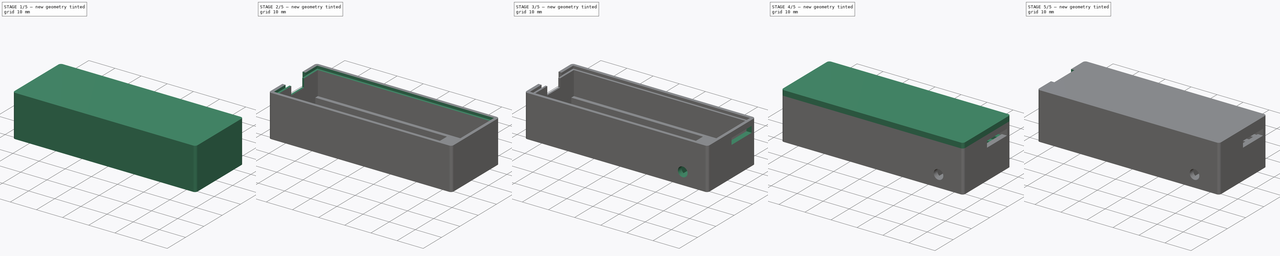
[diagram: build sequence overview — one tinted view per stage of 5, left to right]
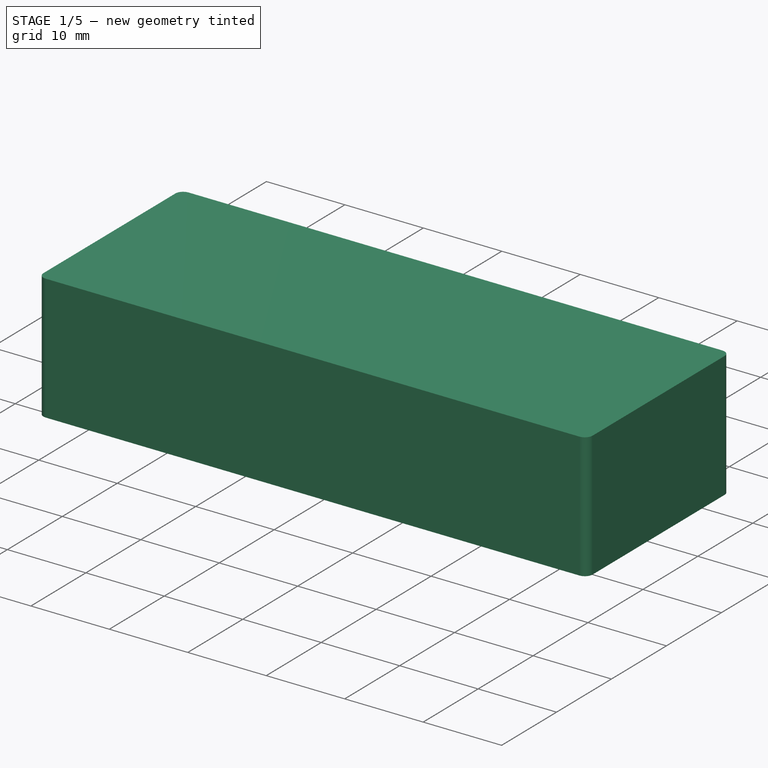
[diagram: stage 1 of 5 — iso view after this stage's code; geometry added in this stage tinted green]
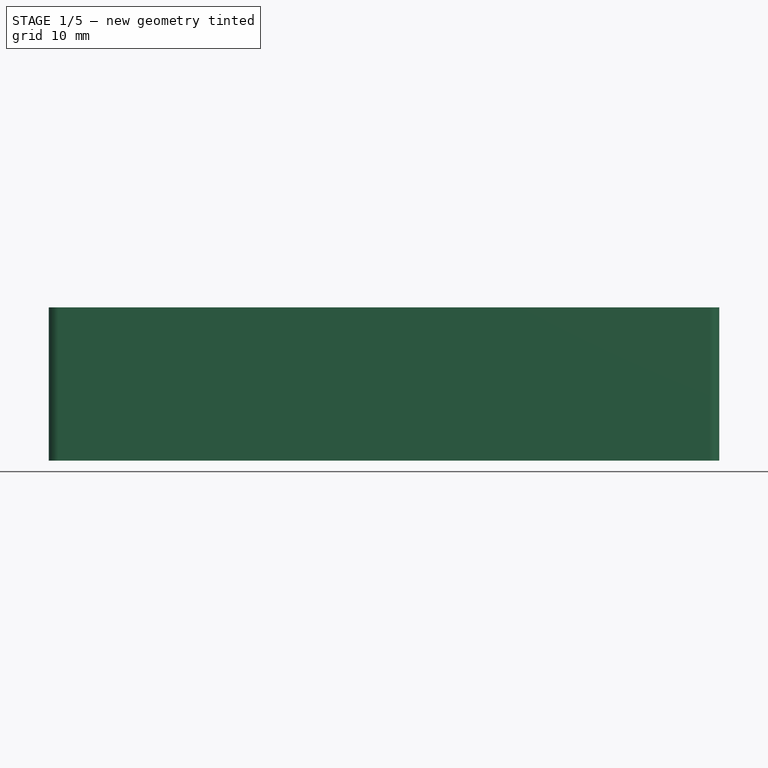
[diagram: stage 1 of 5 — front view after this stage's code; geometry added in this stage tinted green]
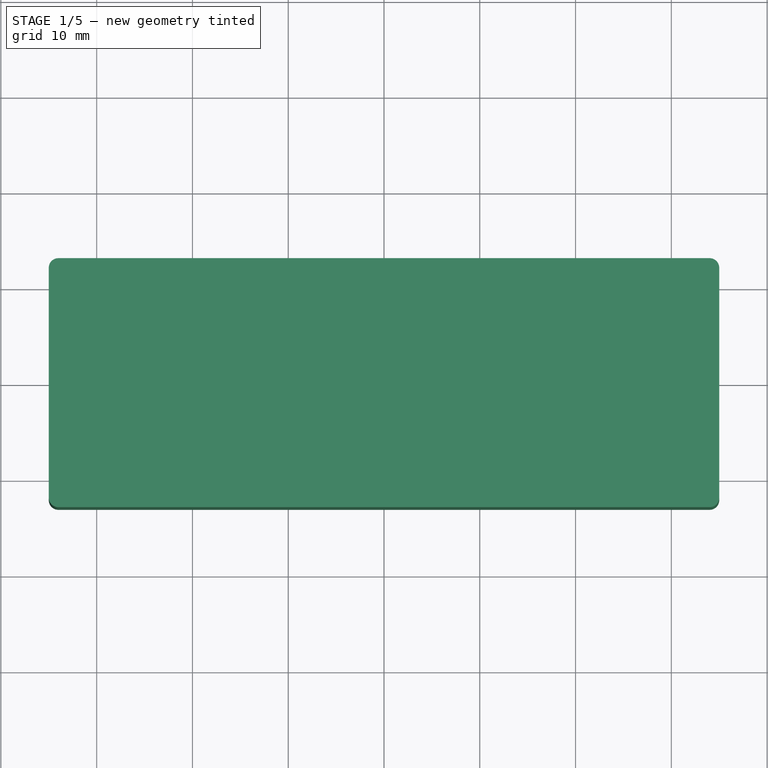
[diagram: stage 1 of 5 — top view after this stage's code; geometry added in this stage tinted green]
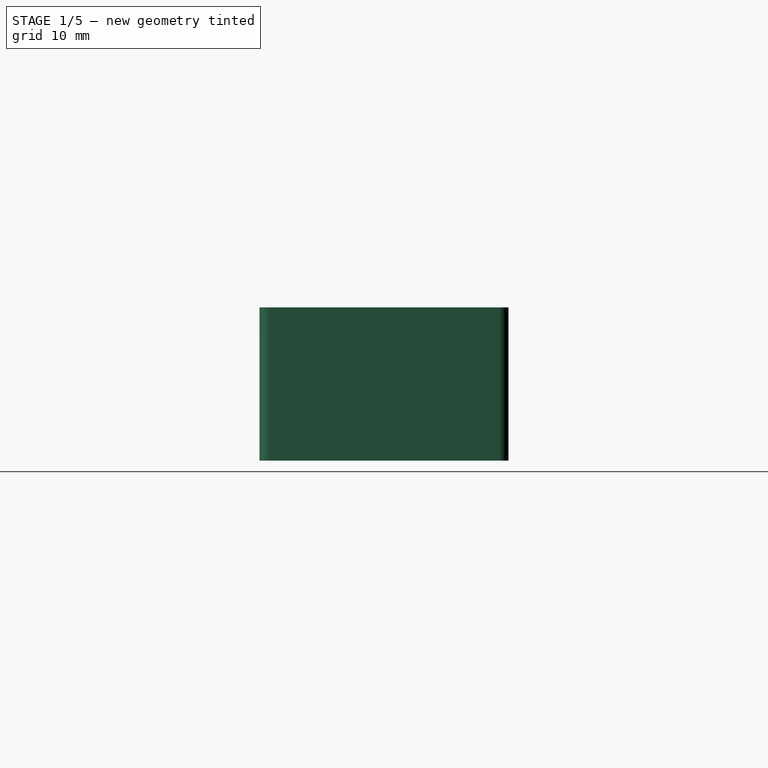
[diagram: stage 1 of 5 — right view after this stage's code; geometry added in this stage tinted green]
FCSTD DOCUMENT  (FreeCAD 0.20R29177 +426 (Git))
Label: LatencyMeter
License: All rights reserved
LicenseURL: http://en.wikipedia.org/wiki/All_rights_reserved
objects: Sketcher::SketchObject×15, PartDesign::Pocket×11, PartDesign::Pad×4, PartDesign::Body×2
note: 47 computed .brp shape members not serialized (recipe doc carries the construction recipe); baked Part::Feature solids carry a one-line shape summary decoded from their .brp

FEATURE [Sketcher::SketchObject] Sketch  label="Case"
  FullyConstrained = false
  MapMode = 5
  Support = -> [XY_Plane]
  sketch-geometry (12):
    g0: LineSegment StartX=-34 StartY=13 StartZ=0 EndX=34 EndY=13 EndZ=0
    g1: LineSegment StartX=35 StartY=12 StartZ=0 EndX=35 EndY=-12 EndZ=0
    g2: LineSegment StartX=34 StartY=-13 StartZ=0 EndX=-34 EndY=-13 EndZ=0
    g3: LineSegment StartX=-35 StartY=-12 StartZ=0 EndX=-35 EndY=12 EndZ=0
    g4: ArcOfCircle CenterX=34 CenterY=12 CenterZ=0 NormalX=0 NormalY=0 NormalZ=1 AngleXU=0 Radius=1 StartAngle=0 EndAngle=1.5708
    g5: GeomPoint X=35 Y=13 Z=0
    g6: ArcOfCircle CenterX=34 CenterY=-12 CenterZ=0 NormalX=0 NormalY=0 NormalZ=1 AngleXU=0 Radius=1 StartAngle=4.71239 EndAngle=6.28319
    g7: GeomPoint X=35 Y=-13 Z=0
    g8: ArcOfCircle CenterX=-34 CenterY=-12 CenterZ=0 NormalX=0 NormalY=0 NormalZ=1 AngleXU=0 Radius=1 StartAngle=3.14159 EndAngle=4.71239
    g9: GeomPoint X=-35 Y=-13 Z=0
    g10: ArcOfCircle CenterX=-34 CenterY=12 CenterZ=0 NormalX=0 NormalY=0 NormalZ=1 AngleXU=0 Radius=1 StartAngle=1.5708 EndAngle=3.14159
    g11: GeomPoint X=-35 Y=13 Z=0
  constraints (26):
    c: Horizontal(g0)
    c: Horizontal(g2)
    c: Vertical(g1)
    c: Vertical(g3)
    c: DistanceY(g9,g11) = 26
    c: DistanceX(g9,g7) = 70
    c: PointOnObject(g5,g0)
    c: PointOnObject(g5,g1)
    c: Tangent(g0,g4) = 1.5708
    c: Tangent(g1,g4) = 1.5708
    c: PointOnObject(g7,g2)
    c: PointOnObject(g7,g1)
    c: Tangent(g2,g6) = 1.5708
    c: Tangent(g1,g6) = 1.5708
    c: PointOnObject(g9,g3)
    c: PointOnObject(g9,g2)
    c: Tangent(g3,g8) = 1.5708
    c: Tangent(g2,g8) = 1.5708
    c: PointOnObject(g11,g3)
    c: PointOnObject(g11,g0)
    c: Tangent(g3,g10) = 1.5708
    c: Tangent(g0,g10) = 1.5708
    c: Radius(g10) = 1
    c: Radius(g8) = 1
    c: Equal(g6,g4)
    c: Radius(g6) = 1
FEATURE [PartDesign::Pad] Pad  label="Pad_Case"
  Direction = (0,0,1)
  Length = 16
  Length2 = 10
  Profile = -> Sketch
  ReferenceAxis = -> Sketch [N_Axis]
  Type = 0
FEATURE [Sketcher::SketchObject] Sketch001  label="Inside"
  AttachmentOffset = pos=(0,0,6) rot=(0,0,1;0rad)
  FullyConstrained = false
  MapMode = 5
  Placement = pos=(0,0,6) rot=(0,0,1;0rad)
  Support = -> [XY_Plane]
  sketch-geometry (4):
    g0: LineSegment StartX=-33.0004 StartY=11 StartZ=0 EndX=32.9996 EndY=11 EndZ=0
    g1: LineSegment StartX=32.9996 StartY=11 StartZ=0 EndX=32.9996 EndY=-11 EndZ=0
    g2: LineSegment StartX=32.9996 StartY=-11 StartZ=0 EndX=-33.0004 EndY=-11 EndZ=0
    g3: LineSegment StartX=-33.0004 StartY=-11 StartZ=0 EndX=-33.0004 EndY=11 EndZ=0
  constraints (10):
    c: Coincident(g0,g1)
    c: Coincident(g1,g2)
    c: Coincident(g2,g3)
    c: Coincident(g3,g0)
    c: Horizontal(g0)
    c: Horizontal(g2)
    c: Vertical(g1)
    c: Vertical(g3)
    c: DistanceY(g3,g3) = 22
    c: DistanceX(g2,g2) = 66
FEATURE [PartDesign::Pocket] Pocket  label="Pocket_Inside"
  BaseFeature = -> Pad
  Direction = (0,0,-1)
  Length = 9
  Length2 = 5
  Profile = -> Sketch001
  ReferenceAxis = -> Sketch001 [N_Axis]
  Reversed = true
  Type = 0
FEATURE [Sketcher::SketchObject] Sketch002  label="Window"
  FullyConstrained = false
  MapMode = 5
  Support = -> [XY_Plane]
  sketch-geometry (4):
    g0: LineSegment StartX=-33.0004 StartY=9.6 StartZ=0 EndX=17.3496 EndY=9.6 EndZ=0
    g1: LineSegment StartX=17.3496 StartY=9.6 StartZ=0 EndX=17.3496 EndY=-9.6 EndZ=0
    g2: LineSegment StartX=17.3496 StartY=-9.6 StartZ=0 EndX=-33.0004 EndY=-9.6 EndZ=0
    g3: LineSegment StartX=-33.0004 StartY=-9.6 StartZ=0 EndX=-33.0004 EndY=9.6 EndZ=0
  constraints (10):
    c: Coincident(g0,g1)
    c: Coincident(g1,g2)
    c: Coincident(g2,g3)
    c: Coincident(g3,g0)
    c: Horizontal(g0)
    c: Horizontal(g2)
    c: Vertical(g1)
    c: Vertical(g3)
    c: DistanceX(g2,g2) = 50.35
    c: DistanceY(g3,g3) = 19.2
FEATURE [PartDesign::Pocket] Pocket001  label="Pocket_Window"
  BaseFeature = -> Pocket
  Direction = (0,0,-1)
  Length = 6
  Length2 = 5
  Profile = -> Sketch002
  ReferenceAxis = -> Sketch002 [N_Axis]
  Reversed = true
  Type = 0
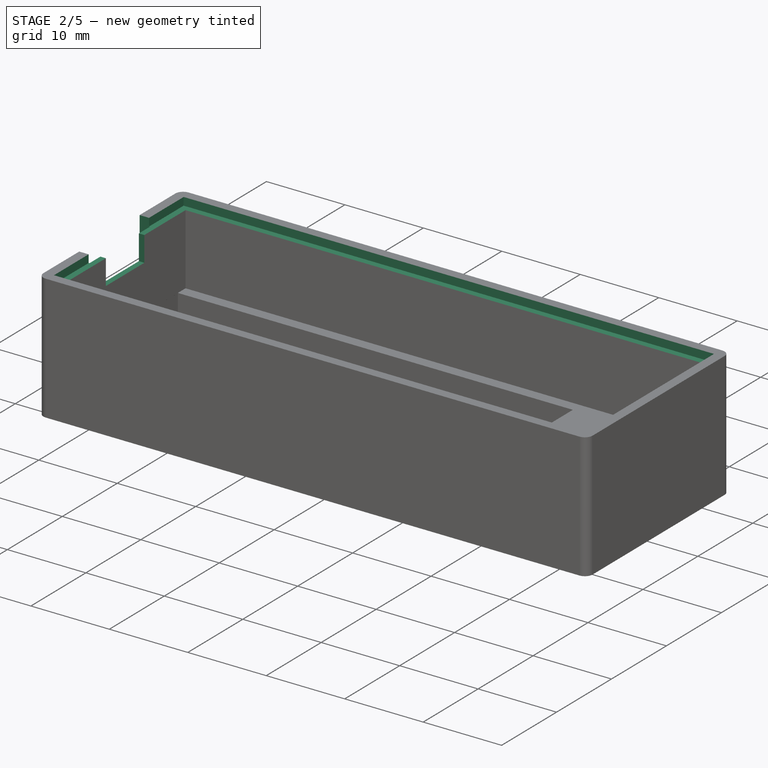
[diagram: stage 2 of 5 — iso view after this stage's code; geometry added in this stage tinted green]
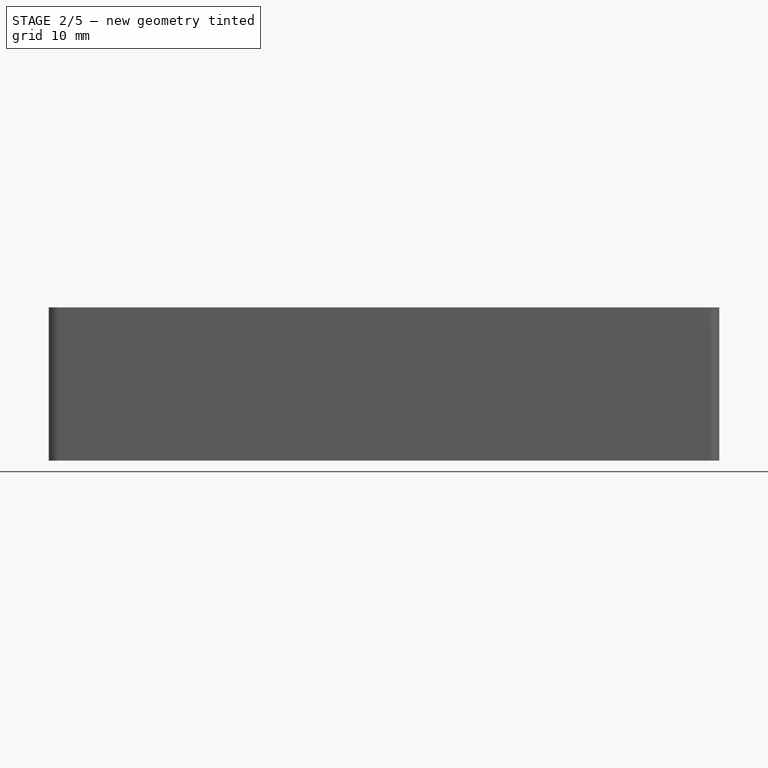
[diagram: stage 2 of 5 — front view after this stage's code; geometry added in this stage tinted green]
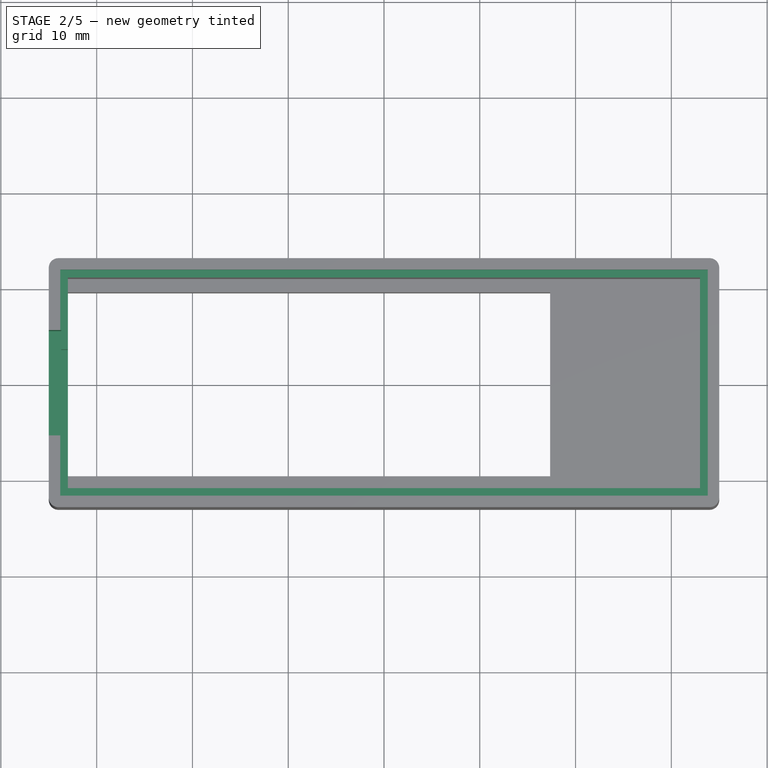
[diagram: stage 2 of 5 — top view after this stage's code; geometry added in this stage tinted green]
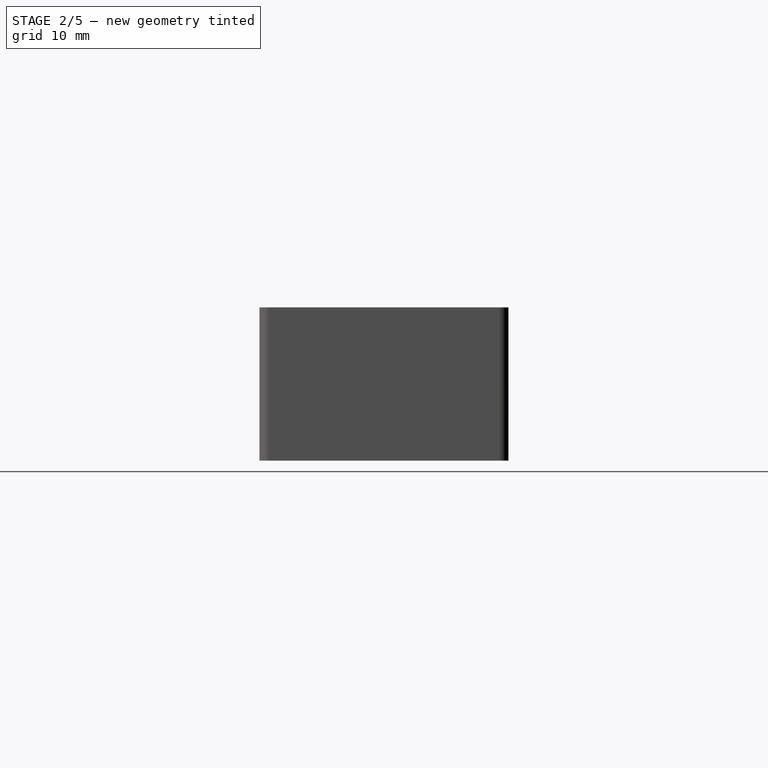
[diagram: stage 2 of 5 — right view after this stage's code; geometry added in this stage tinted green]
FEATURE [Sketcher::SketchObject] Sketch003  label="miniUSB"
  AttachmentOffset = pos=(0,0,-35) rot=(0,0,1;0rad)
  FullyConstrained = false
  MapMode = 5
  Placement = pos=(-35,7.8e-15,-7.8e-15) rot=(0.57735,0.57735,0.57735;2.0944rad)
  Support = -> [YZ_Plane]
  sketch-geometry (5):
    g0: LineSegment StartX=5.5 StartY=17.6 StartZ=0 EndX=-5.5 EndY=17.6 EndZ=0
    g1: LineSegment StartX=-5.5 StartY=17.6 StartZ=0 EndX=-5.5 EndY=9 EndZ=0
    g2: LineSegment StartX=-5.5 StartY=9 StartZ=0 EndX=5.5 EndY=9 EndZ=0
    g3: LineSegment StartX=5.5 StartY=9 StartZ=0 EndX=5.5 EndY=17.6 EndZ=0
    g4: LineSegment StartX=2.16349 StartY=9 StartZ=0 EndX=2.16349 EndY=0 EndZ=0
  constraints (14):
    c: Coincident(g0,g1)
    c: Coincident(g1,g2)
    c: Coincident(g2,g3)
    c: Coincident(g3,g0)
    c: Horizontal(g0)
    c: Horizontal(g2)
    c: Vertical(g1)
    c: Vertical(g3)
    c: DistanceX(g2,g2) = 11
    c: DistanceY(g3,g3) = 8.6
    c: PointOnObject(g4,g2)
    c: PointOnObject(g4,g-1)
    c: Vertical(g4)
    c: DistanceY(g4,g4) = 9
FEATURE [PartDesign::Pocket] Pocket002  label="Pocket_miniUSB"
  BaseFeature = -> Pocket001
  Direction = (-1,2e-16,-3e-16)
  Length = 1.3
  Length2 = 5
  Profile = -> Sketch003
  ReferenceAxis = -> Sketch003 [N_Axis]
  Reversed = true
  Type = 0
FEATURE [Sketcher::SketchObject] Sketch004  label="miniUSB_Jack"
  FullyConstrained = false
  MapMode = 5
  Placement = pos=(-33.7,1.1e-14,-1.4e-14) rot=(0.57735,-0.57735,-0.57735;2.0944rad)
  sketch-geometry (5):
    g0: LineSegment StartX=-3.5 StartY=15 StartZ=0 EndX=3.5 EndY=15 EndZ=0
    g1: LineSegment StartX=3.5 StartY=15 StartZ=0 EndX=3.5 EndY=11.8 EndZ=0
    g2: LineSegment StartX=3.5 StartY=11.8 StartZ=0 EndX=-3.5 EndY=11.8 EndZ=0
    g3: LineSegment StartX=-3.5 StartY=11.8 StartZ=0 EndX=-3.5 EndY=15 EndZ=0
    g4: LineSegment StartX=-2.13434 StartY=11.8 StartZ=0 EndX=-2.13434 EndY=0 EndZ=0
  constraints (14):
    c: Coincident(g0,g1)
    c: Coincident(g1,g2)
    c: Coincident(g2,g3)
    c: Coincident(g3,g0)
    c: Horizontal(g0)
    c: Horizontal(g2)
    c: Vertical(g1)
    c: Vertical(g3)
    c: DistanceX(g2,g2) = 7
    c: DistanceY(g1,g1) = 3.2
    c: PointOnObject(g4,g2)
    c: PointOnObject(g4,g-1)
    c: Vertical(g4)
    c: Distance(g4) = 11.8
FEATURE [PartDesign::Pocket] Pocket003  label="Pocket_miniUSB_Jack"
  BaseFeature = -> Pocket002
  Direction = (1,0,0)
  Length = 1
  Length2 = 5
  Profile = -> Sketch004
  ReferenceAxis = -> Sketch004 [N_Axis]
  Type = 0
FEATURE [Sketcher::SketchObject] Sketch006  label="Sketch_Joint"
  AttachmentOffset = pos=(0,0,16) rot=(0,0,1;0rad)
  FullyConstrained = false
  MapMode = 5
  Placement = pos=(0,0,16) rot=(0,0,1;0rad)
  Support = -> [XY_Plane]
  sketch-geometry (4):
    g0: LineSegment StartX=-33.7 StartY=11.7 StartZ=0 EndX=33.7 EndY=11.7 EndZ=0
    g1: LineSegment StartX=33.7 StartY=11.7 StartZ=0 EndX=33.7 EndY=-11.7 EndZ=0
    g2: LineSegment StartX=33.7 StartY=-11.7 StartZ=0 EndX=-33.7 EndY=-11.7 EndZ=0
    g3: LineSegment StartX=-33.7 StartY=-11.7 StartZ=0 EndX=-33.7 EndY=11.7 EndZ=0
  constraints (10):
    c: Coincident(g0,g1)
    c: Coincident(g1,g2)
    c: Coincident(g2,g3)
    c: Coincident(g3,g0)
    c: Horizontal(g0)
    c: Horizontal(g2)
    c: Vertical(g1)
    c: Vertical(g3)
    c: DistanceY(g1,g1) = 23.4
    c: DistanceX(g2,g2) = 67.4
FEATURE [Sketcher::SketchObject] Sketch007
  FullyConstrained = false
  MapMode = 5
  Placement = pos=(0,0,16) rot=(0,0,1;0rad)
  Support = -> [Pocket003]
  sketch-geometry (4):
    g0: LineSegment StartX=-33.8 StartY=11.8 StartZ=0 EndX=33.8 EndY=11.8 EndZ=0
    g1: LineSegment StartX=33.8 StartY=11.8 StartZ=0 EndX=33.8 EndY=-11.8 EndZ=0
    g2: LineSegment StartX=33.8 StartY=-11.8 StartZ=0 EndX=-33.8 EndY=-11.8 EndZ=0
    g3: LineSegment StartX=-33.8 StartY=-11.8 StartZ=0 EndX=-33.8 EndY=11.8 EndZ=0
  constraints (10):
    c: Coincident(g0,g1)
    c: Coincident(g1,g2)
    c: Coincident(g2,g3)
    c: Coincident(g3,g0)
    c: Horizontal(g0)
    c: Horizontal(g2)
    c: Vertical(g1)
    c: Vertical(g3)
    c: DistanceY(g1,g1) = 23.6
    c: DistanceX(g0,g0) = 67.6
FEATURE [PartDesign::Pocket] Pocket004
  BaseFeature = -> Pocket003
  Direction = (0,0,-1)
  Length = 1
  Length2 = 5
  Profile = -> Sketch007
  ReferenceAxis = -> Sketch007 [N_Axis]
  Type = 0
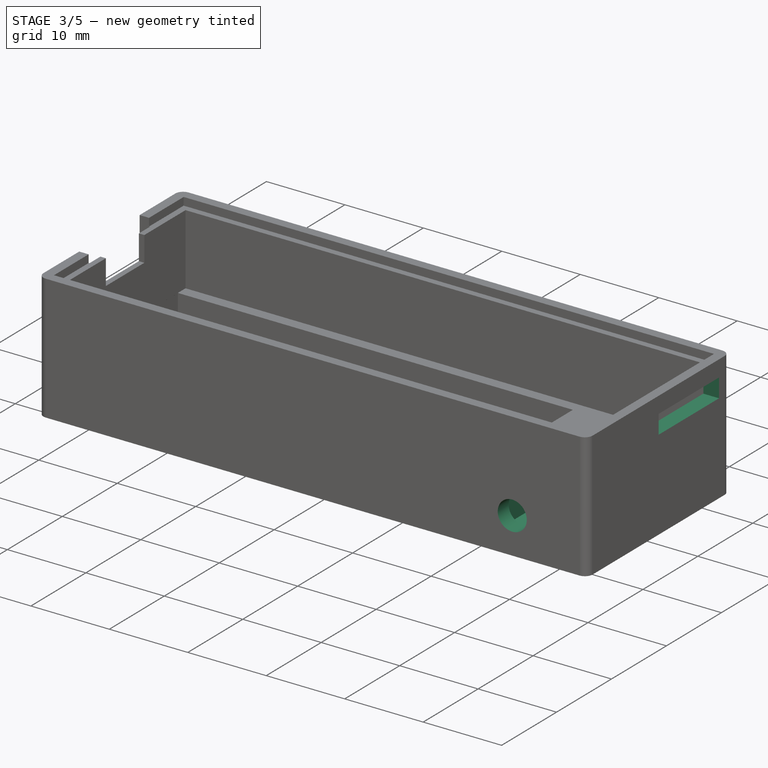
[diagram: stage 3 of 5 — iso view after this stage's code; geometry added in this stage tinted green]
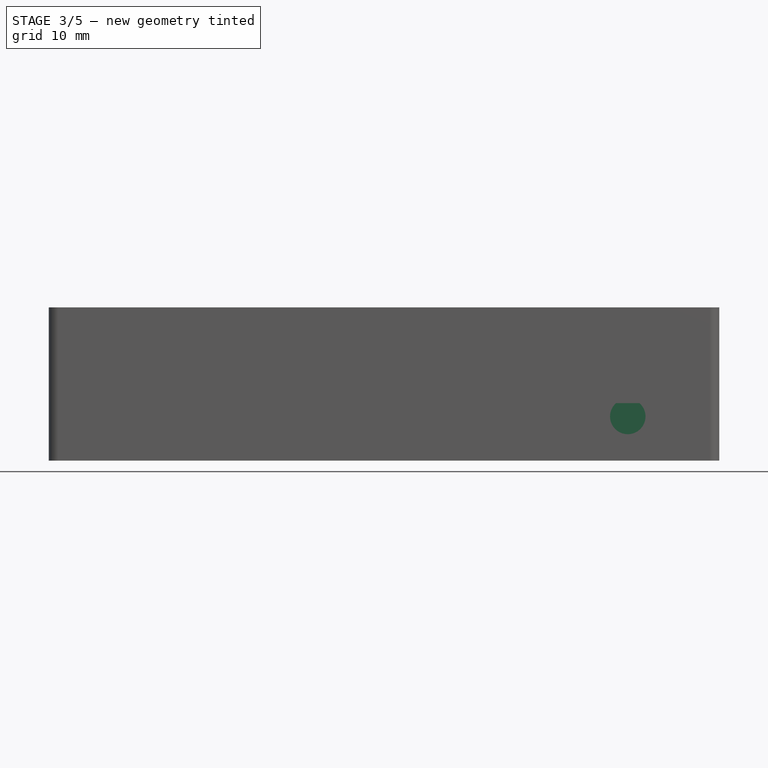
[diagram: stage 3 of 5 — front view after this stage's code; geometry added in this stage tinted green]
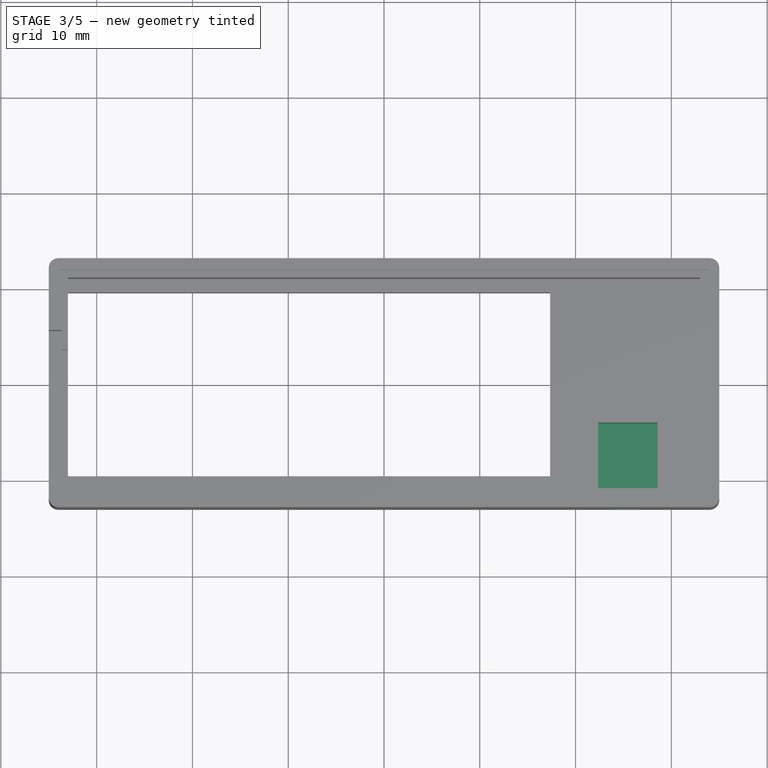
[diagram: stage 3 of 5 — top view after this stage's code; geometry added in this stage tinted green]
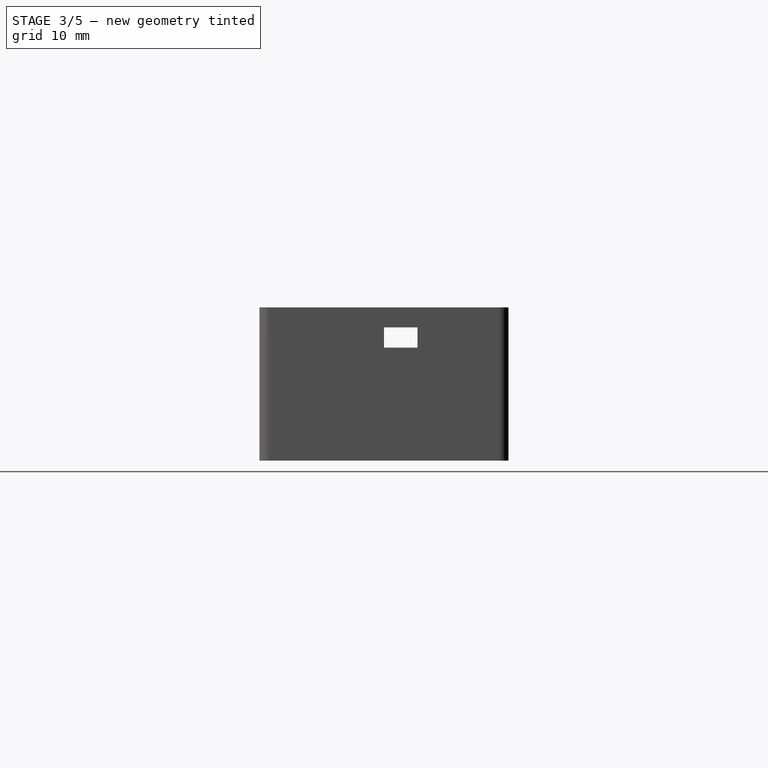
[diagram: stage 3 of 5 — right view after this stage's code; geometry added in this stage tinted green]
FEATURE [PartDesign::Body] Body001  label="Cap"
  Group = -> [Sketch005,Pad001,Sketch006,Pad002,Sketch008,Pocket005,Sketch009,Pocket006,Sketch010,Pocket007]
  Origin = -> Origin001
  Tip = -> Pocket007
FEATURE [Sketcher::SketchObject] Sketch011
  FullyConstrained = false
  MapMode = 5
  Placement = pos=(0,0,6) rot=(0,0,1;0rad)
  Support = -> [Pocket004]
  sketch-geometry (4):
    g0: LineSegment StartX=22.3517 StartY=-4 StartZ=0 EndX=28.5517 EndY=-4 EndZ=0
    g1: LineSegment StartX=28.5517 StartY=-4 StartZ=0 EndX=28.5517 EndY=-11 EndZ=0
    g2: LineSegment StartX=28.5517 StartY=-11 StartZ=0 EndX=22.3517 EndY=-11 EndZ=0
    g3: LineSegment StartX=22.3517 StartY=-11 StartZ=0 EndX=22.3517 EndY=-4 EndZ=0
  constraints (10):
    c: Coincident(g0,g1)
    c: Coincident(g1,g2)
    c: Coincident(g2,g3)
    c: Coincident(g3,g0)
    c: Horizontal(g0)
    c: Horizontal(g2)
    c: Vertical(g1)
    c: Vertical(g3)
    c: DistanceY(g1,g1) = 7
    c: DistanceX(g2,g2) = 6.2
FEATURE [PartDesign::Pocket] Pocket008
  BaseFeature = -> Pocket004
  Direction = (0,0,-1)
  Length = 4.5
  Length2 = 5
  Profile = -> Sketch011
  ReferenceAxis = -> Sketch011 [N_Axis]
  Type = 0
FEATURE [Sketcher::SketchObject] Sketch012
  FullyConstrained = false
  MapMode = 5
  Placement = pos=(0,-11,0) rot=(0,0.707107,0.707107;3.14159rad)
  Support = -> [Pocket008]
  sketch-geometry (1):
    g0: Circle CenterX=-25.4517 CenterY=4.6093 CenterZ=0 NormalX=0 NormalY=0 NormalZ=1 AngleXU=0 Radius=1.85
  constraints (1):
    c: Diameter(g0) = 3.7
FEATURE [PartDesign::Pocket] Pocket009
  BaseFeature = -> Pocket008
  Direction = (0,-1,2e-16)
  Length = 2.1
  Length2 = 5
  Profile = -> Sketch012
  ReferenceAxis = -> Sketch012 [N_Axis]
  Type = 0
FEATURE [Sketcher::SketchObject] Sketch013
  FullyConstrained = false
  MapMode = 5
  Placement = pos=(32.9996,0,0) rot=(0.57735,-0.57735,-0.57735;2.0944rad)
  Support = -> [Pocket009]
  sketch-geometry (4):
    g0: LineSegment StartX=-11 StartY=13.9152 StartZ=0 EndX=2.87525e-07 EndY=13.9152 EndZ=0
    g1: LineSegment StartX=2.87525e-07 StartY=13.9152 StartZ=0 EndX=2.87525e-07 EndY=11.5152 EndZ=0
    g2: LineSegment StartX=2.87525e-07 StartY=11.5152 StartZ=0 EndX=-11 EndY=11.5152 EndZ=0
    g3: LineSegment StartX=-11 StartY=11.5152 StartZ=0 EndX=-11 EndY=13.9152 EndZ=0
  constraints (10):
    c: Coincident(g0,g1)
    c: Coincident(g1,g2)
    c: Coincident(g2,g3)
    c: Coincident(g3,g0)
    c: Horizontal(g0)
    c: Horizontal(g2)
    c: Vertical(g1)
    c: Vertical(g3)
    c: DistanceX(g2,g2) = 11
    c: DistanceY(g1,g1) = 2.4
FEATURE [PartDesign::Pocket] Pocket010
  BaseFeature = -> Pocket009
  Direction = (1,0,0)
  Length = 2.1
  Length2 = 5
  Profile = -> Sketch013
  ReferenceAxis = -> Sketch013 [N_Axis]
  Type = 0
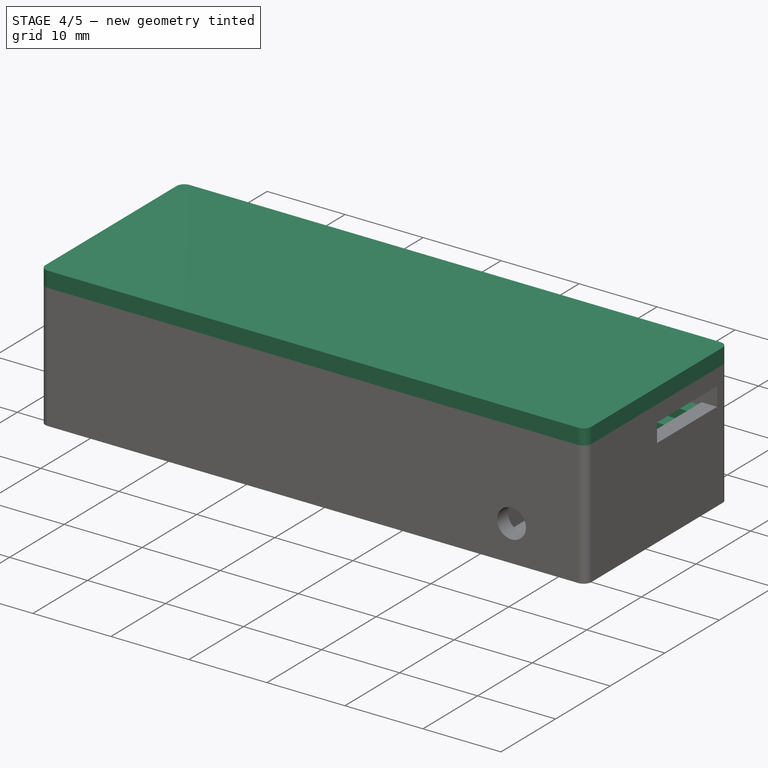
[diagram: stage 4 of 5 — iso view after this stage's code; geometry added in this stage tinted green]
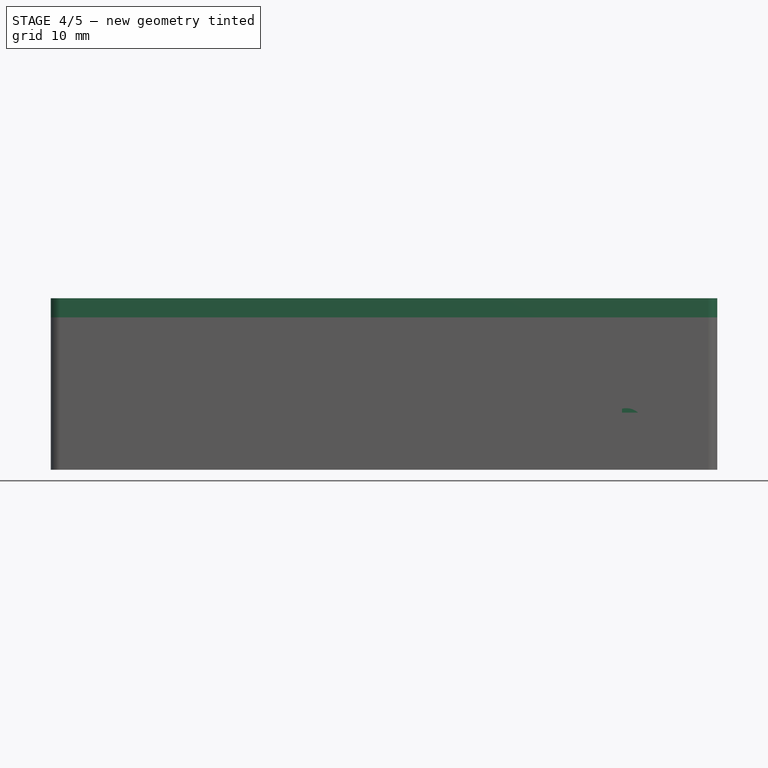
[diagram: stage 4 of 5 — front view after this stage's code; geometry added in this stage tinted green]
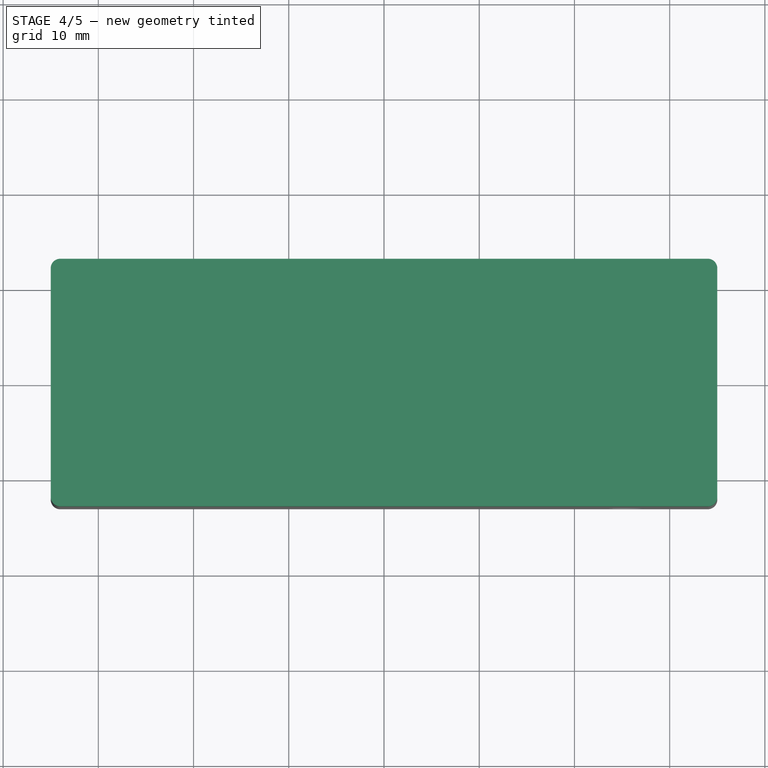
[diagram: stage 4 of 5 — top view after this stage's code; geometry added in this stage tinted green]
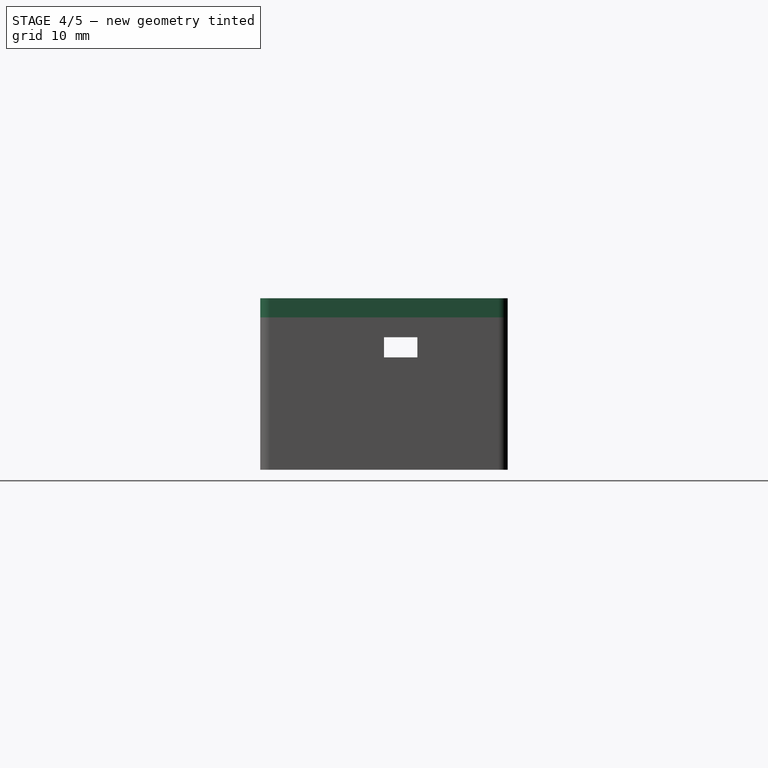
[diagram: stage 4 of 5 — right view after this stage's code; geometry added in this stage tinted green]
FEATURE [Sketcher::SketchObject] Sketch005  label="Sketch_Cap"
  AttachmentOffset = pos=(0,0,16) rot=(0,0,1;0rad)
  FullyConstrained = false
  MapMode = 5
  Placement = pos=(0,0,16) rot=(0,0,1;0rad)
  Support = -> [XY_Plane]
  sketch-geometry (12):
    g0: LineSegment StartX=-34 StartY=13 StartZ=0 EndX=34 EndY=13 EndZ=0
    g1: LineSegment StartX=35 StartY=12 StartZ=0 EndX=35 EndY=-12 EndZ=0
    g2: LineSegment StartX=34 StartY=-13 StartZ=0 EndX=-34 EndY=-13 EndZ=0
    g3: LineSegment StartX=-35 StartY=-12 StartZ=0 EndX=-35 EndY=12 EndZ=0
    g4: ArcOfCircle CenterX=-34 CenterY=12 CenterZ=0 NormalX=0 NormalY=0 NormalZ=1 AngleXU=0 Radius=1 StartAngle=1.5708 EndAngle=3.14159
    g5: GeomPoint X=-35 Y=13 Z=0
    g6: ArcOfCircle CenterX=-34 CenterY=-12 CenterZ=0 NormalX=0 NormalY=0 NormalZ=1 AngleXU=0 Radius=1 StartAngle=3.14159 EndAngle=4.71239
    g7: GeomPoint X=-35 Y=-13 Z=0
    g8: ArcOfCircle CenterX=34 CenterY=-12 CenterZ=0 NormalX=0 NormalY=0 NormalZ=1 AngleXU=0 Radius=1 StartAngle=4.71239 EndAngle=6.28319
    g9: GeomPoint X=35 Y=-13 Z=0
    g10: ArcOfCircle CenterX=34 CenterY=12 CenterZ=0 NormalX=0 NormalY=0 NormalZ=1 AngleXU=0 Radius=1 StartAngle=0 EndAngle=1.5708
    g11: GeomPoint X=35 Y=13 Z=0
  constraints (26):
    c: Horizontal(g0)
    c: Horizontal(g2)
    c: Vertical(g1)
    c: Vertical(g3)
    c: DistanceY(g9,g11) = 26
    c: DistanceX(g7,g9) = 70
    c: PointOnObject(g5,g0)
    c: PointOnObject(g5,g3)
    c: Tangent(g0,g4) = 1.5708
    c: Tangent(g3,g4) = 1.5708
    c: PointOnObject(g7,g2)
    c: PointOnObject(g7,g3)
    c: Tangent(g2,g6) = 1.5708
    c: Tangent(g3,g6) = 1.5708
    c: PointOnObject(g9,g2)
    c: PointOnObject(g9,g1)
    c: Tangent(g2,g8) = 1.5708
    c: Tangent(g1,g8) = 1.5708
    c: PointOnObject(g11,g0)
    c: PointOnObject(g11,g1)
    c: Tangent(g0,g10) = 1.5708
    c: Tangent(g1,g10) = 1.5708
    c: Radius(g4) = 1
    c: Radius(g6) = 1
    c: Radius(g10) = 1
    c: Radius(g8) = 1
FEATURE [PartDesign::Pad] Pad001  label="Pad_Cap"
  Direction = (0,0,1)
  Length = 2
  Length2 = 10
  Profile = -> Sketch005
  ReferenceAxis = -> Sketch005 [N_Axis]
  Type = 0
FEATURE [PartDesign::Pad] Pad002  label="Pad_Joint"
  BaseFeature = -> Pad001
  Direction = (0,0,1)
  Length = 1
  Length2 = 10
  Profile = -> Sketch006
  ReferenceAxis = -> Sketch006 [N_Axis]
  Reversed = true
  Type = 0
FEATURE [Sketcher::SketchObject] Sketch014
  FullyConstrained = false
  MapMode = 5
  Placement = pos=(0,0,6) rot=(0,0,1;0rad)
  Support = -> [Pocket010]
  sketch-geometry (12):
    g0: LineSegment StartX=24.9996 StartY=10.3429 StartZ=0 EndX=32.9996 EndY=10.3429 EndZ=0
    g1: LineSegment StartX=32.9996 StartY=10.3429 StartZ=0 EndX=32.9996 EndY=8.34288 EndZ=0
    g2: LineSegment StartX=32.9996 StartY=8.34288 StartZ=0 EndX=24.9996 EndY=8.34288 EndZ=0
    g3: LineSegment StartX=24.9996 StartY=8.34288 StartZ=0 EndX=24.9996 EndY=10.3429 EndZ=0
    g4: LineSegment StartX=24.9996 StartY=2.08132 StartZ=0 EndX=32.9996 EndY=2.08132 EndZ=0
    g5: LineSegment StartX=32.9996 StartY=2.08132 StartZ=0 EndX=32.9996 EndY=0.0813237 EndZ=0
    g6: LineSegment StartX=32.9996 StartY=0.0813237 StartZ=0 EndX=24.9996 EndY=0.0813237 EndZ=0
    g7: LineSegment StartX=24.9996 StartY=0.0813237 StartZ=0 EndX=24.9996 EndY=2.08132 EndZ=0
    g8: LineSegment StartX=24.9996 StartY=6.15529 StartZ=0 EndX=32.9996 EndY=6.15529 EndZ=0
    g9: LineSegment StartX=32.9996 StartY=6.15529 StartZ=0 EndX=32.9996 EndY=4.15529 EndZ=0
    g10: LineSegment StartX=32.9996 StartY=4.15529 StartZ=0 EndX=24.9996 EndY=4.15529 EndZ=0
    g11: LineSegment StartX=24.9996 StartY=4.15529 StartZ=0 EndX=24.9996 EndY=6.15529 EndZ=0
  constraints (30):
    c: Coincident(g0,g1)
    c: Coincident(g1,g2)
    c: Coincident(g2,g3)
    c: Coincident(g3,g0)
    c: Horizontal(g0)
    c: Horizontal(g2)
    c: Vertical(g1)
    c: Vertical(g3)
    c: DistanceX(g2,g2) = 8
    c: DistanceY(g1,g1) = 2
    c: Coincident(g4,g5)
    c: Coincident(g5,g6)
    c: Coincident(g6,g7)
    c: Coincident(g7,g4)
    c: Horizontal(g4)
    c: Horizontal(g6)
    c: Vertical(g5)
    c: Vertical(g7)
    c: DistanceY(g5,g5) = 2
    c: DistanceX(g6,g6) = 8
    c: Coincident(g8,g9)
    c: Coincident(g9,g10)
    c: Coincident(g10,g11)
    c: Coincident(g11,g8)
    c: Horizontal(g8)
    c: Horizontal(g10)
    c: Vertical(g9)
    c: Vertical(g11)
    c: DistanceX(g10,g10) = 8
    c: DistanceY(g9,g9) = 2
FEATURE [PartDesign::Pad] Pad003
  BaseFeature = -> Pocket010
  Direction = (0,0,1)
  Length = 5.52
  Length2 = 10
  Profile = -> Sketch014
  ReferenceAxis = -> Sketch014 [N_Axis]
  Type = 0
FEATURE [PartDesign::Body] Body
  Group = -> [Sketch,Pad,Sketch001,Pocket,Sketch002,Pocket001,Sketch003,Pocket002,Sketch004,Pocket003,Sketch007,Pocket004,Sketch011,Pocket008,Sketch012,Pocket009,Sketch013,Pocket010,Sketch014,Pad003]
  Origin = -> Origin
  Tip = -> Pad003
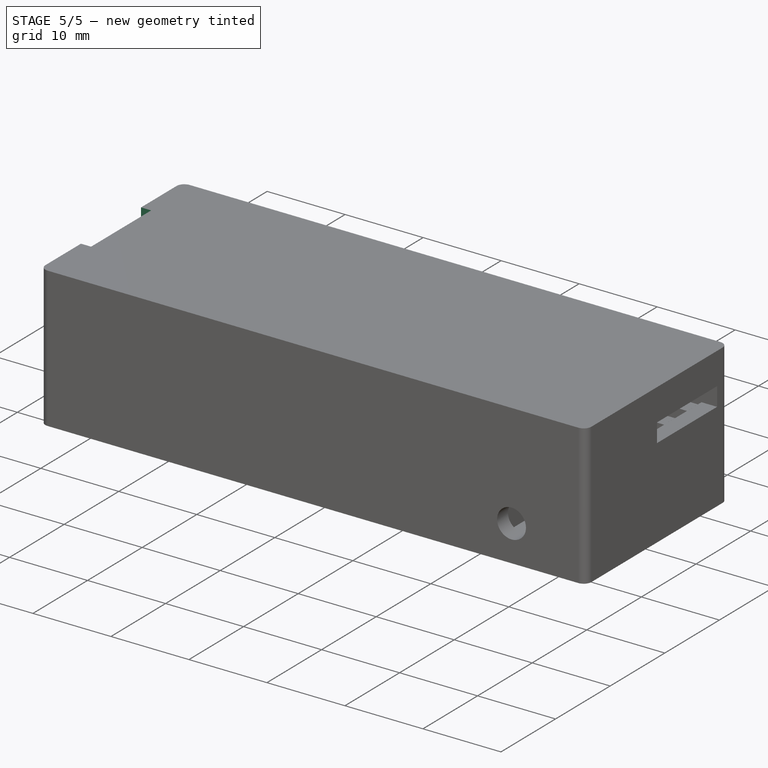
[diagram: stage 5 of 5 — iso view after this stage's code; geometry added in this stage tinted green]
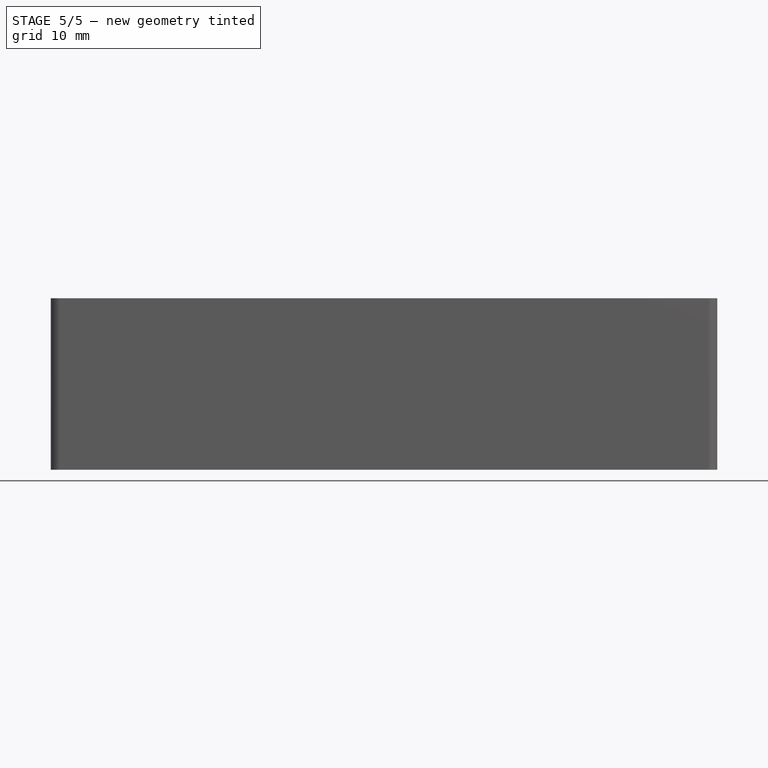
[diagram: stage 5 of 5 — front view after this stage's code; geometry added in this stage tinted green]
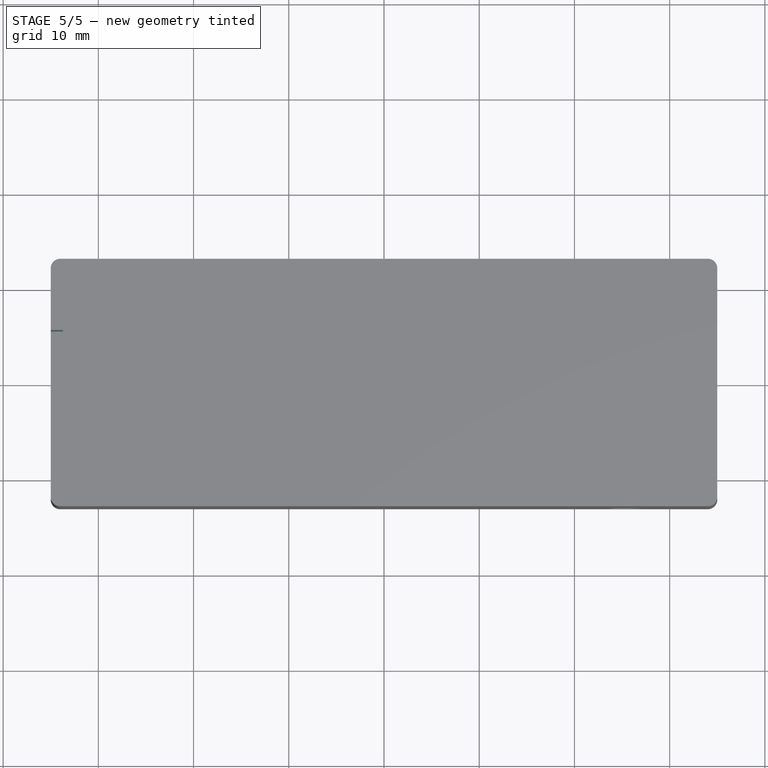
[diagram: stage 5 of 5 — top view after this stage's code; geometry added in this stage tinted green]
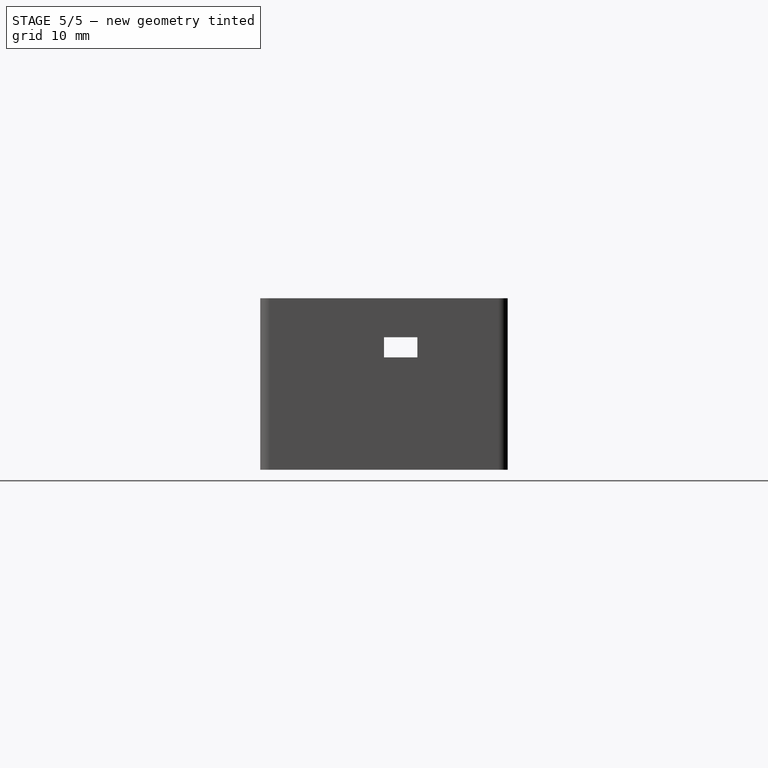
[diagram: stage 5 of 5 — right view after this stage's code; geometry added in this stage tinted green]
FEATURE [Sketcher::SketchObject] Sketch008
  AttachmentOffset = pos=(0,0,-35) rot=(0,0,1;0rad)
  FullyConstrained = false
  MapMode = 5
  Placement = pos=(-35,7.8e-15,-7.8e-15) rot=(0.57735,0.57735,0.57735;2.0944rad)
  Support = -> [YZ_Plane001]
  sketch-geometry (4):
    g0: LineSegment StartX=5.5 StartY=18 StartZ=0 EndX=-5.49999 EndY=18 EndZ=0
    g1: LineSegment StartX=-5.49999 StartY=18 StartZ=0 EndX=-5.49999 EndY=15 EndZ=0
    g2: LineSegment StartX=-5.49999 StartY=15 StartZ=0 EndX=5.5 EndY=15 EndZ=0
    g3: LineSegment StartX=5.5 StartY=15 StartZ=0 EndX=5.5 EndY=18 EndZ=0
  constraints (8):
    c: Coincident(g0,g1)
    c: Coincident(g1,g2)
    c: Coincident(g2,g3)
    c: Coincident(g3,g0)
    c: Horizontal(g0)
    c: Horizontal(g2)
    c: Vertical(g1)
    c: Vertical(g3)
FEATURE [PartDesign::Pocket] Pocket005
  BaseFeature = -> Pad002
  Direction = (-1,2e-16,-3e-16)
  Length = 1.3
  Length2 = 5
  Profile = -> Sketch008
  ReferenceAxis = -> Sketch008 [N_Axis]
  Reversed = true
  Type = 0
FEATURE [Sketcher::SketchObject] Sketch009
  FullyConstrained = false
  MapMode = 5
  Placement = pos=(0,0,15) rot=(1,0,0;3.14159rad)
  Support = -> [Pocket005]
  sketch-geometry (4):
    g0: LineSegment StartX=-33.7 StartY=3.5 StartZ=0 EndX=-23.7 EndY=3.5 EndZ=0
    g1: LineSegment StartX=-23.7 StartY=3.5 StartZ=0 EndX=-23.7 EndY=-3.5 EndZ=0
    g2: LineSegment StartX=-23.7 StartY=-3.5 StartZ=0 EndX=-33.7 EndY=-3.5 EndZ=0
    g3: LineSegment StartX=-33.7 StartY=-3.5 StartZ=0 EndX=-33.7 EndY=3.5 EndZ=0
  constraints (10):
    c: Coincident(g0,g1)
    c: Coincident(g1,g2)
    c: Coincident(g2,g3)
    c: Coincident(g3,g0)
    c: Horizontal(g0)
    c: Horizontal(g2)
    c: Vertical(g1)
    c: Vertical(g3)
    c: DistanceY(g1,g1) = 7
    c: DistanceX(g2,g2) = 10
FEATURE [PartDesign::Pocket] Pocket006
  BaseFeature = -> Pocket005
  Direction = (0,0,1)
  Length = 1.3
  Length2 = 5
  Profile = -> Sketch009
  ReferenceAxis = -> Sketch009 [N_Axis]
  Type = 0
FEATURE [Sketcher::SketchObject] Sketch010
  FullyConstrained = false
  MapMode = 5
  Placement = pos=(0,0,15) rot=(1,0,0;3.14159rad)
  Support = -> [Pocket006]
  sketch-geometry (4):
    g0: LineSegment StartX=-32.5 StartY=10.5 StartZ=0 EndX=32.5 EndY=10.5 EndZ=0
    g1: LineSegment StartX=32.5 StartY=10.5 StartZ=0 EndX=32.5 EndY=-10.5 EndZ=0
    g2: LineSegment StartX=32.5 StartY=-10.5 StartZ=0 EndX=-32.5 EndY=-10.5 EndZ=0
    g3: LineSegment StartX=-32.5 StartY=-10.5 StartZ=0 EndX=-32.5 EndY=10.5 EndZ=0
  constraints (10):
    c: Coincident(g0,g1)
    c: Coincident(g1,g2)
    c: Coincident(g2,g3)
    c: Coincident(g3,g0)
    c: Horizontal(g0)
    c: Horizontal(g2)
    c: Vertical(g1)
    c: Vertical(g3)
    c: DistanceX(g2,g2) = 65
    c: DistanceY(g1,g1) = 21
FEATURE [PartDesign::Pocket] Pocket007
  BaseFeature = -> Pocket006
  Direction = (0,0,1)
  Length = 1.5
  Length2 = 5
  Profile = -> Sketch010
  ReferenceAxis = -> Sketch010 [N_Axis]
  Type = 0
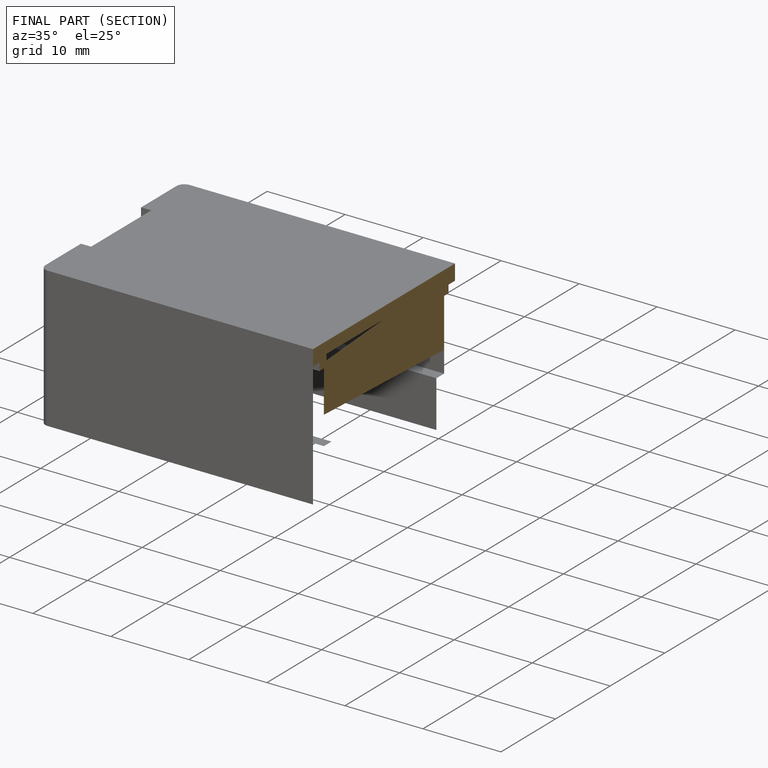
[diagram: finished part — half-section view (interior)]
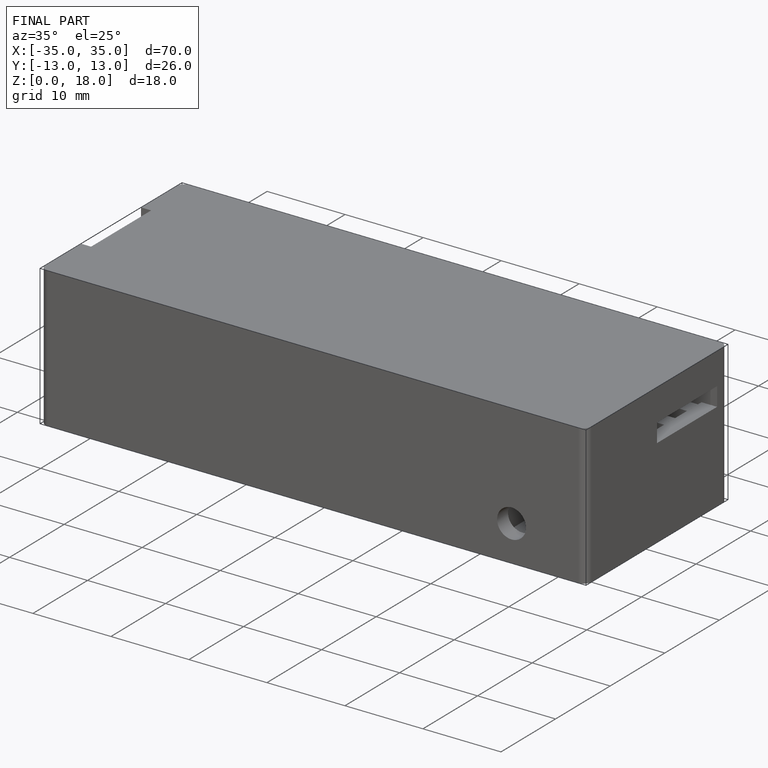
[diagram: finished part — iso view with bounding-box wireframe]
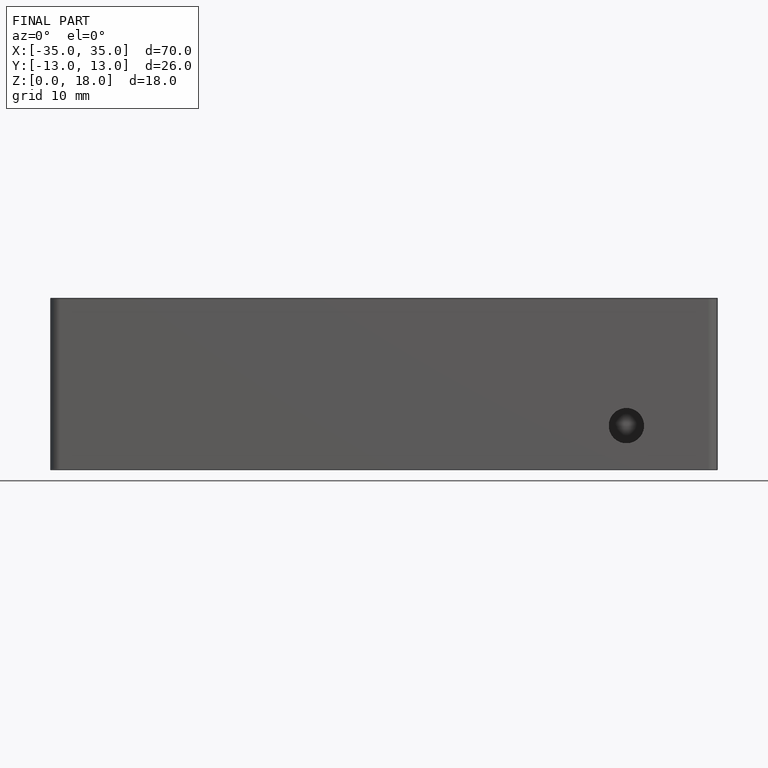
[diagram: finished part — front view with bounding-box wireframe]
